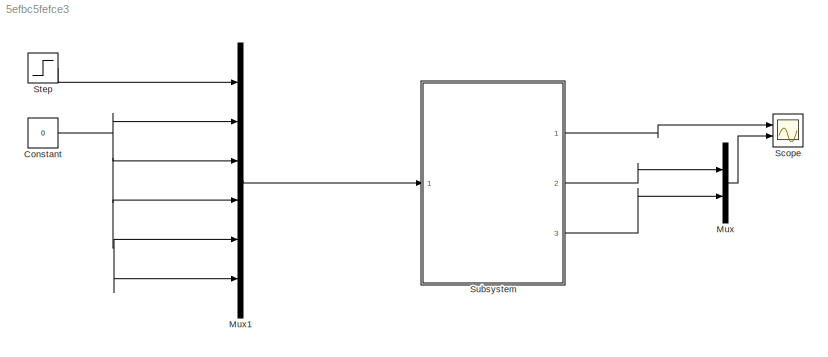
MODEL slx_5efbc5fefce3
KIND model
CONFIG AbsTol = auto
CONFIG EnableMultiTasking = off
CONFIG FixedStep = auto
CONFIG MaxStep = auto
CONFIG MinStep = auto
CONFIG RelTol = 1e-3
CONFIG SampleTimeConstraint = Unconstrained
CONFIG Solver = VariableStepAuto
CONFIG SolverName = VariableStepAuto
CONFIG StartTime = 0.0
CONFIG StopTime = 100
BLOCK [Constant] Constant
  Value = 0
BLOCK [Mux] Mux
  DisplayOption = bar
  Inputs = 2
  Ports = [2, 1]
BLOCK [Mux] Mux1
  DisplayOption = bar
  Inputs = 6
  Ports = [6, 1]
BLOCK [Scope] Scope
  NumInputPorts = 2
  Ports = [2]
  ScopeSpecificationString = Simulink.scopes.TimeScopeBlockCfg('CurrentConfiguration', extmgr.ConfigurationSet(extmgr.Configuration('Core','General UI',true),extmgr.Configuration('Core','Source UI',true),extmgr.Configuration('Sources','WiredSimulink',true),extmgr.Configuration('Visuals','Time Domain',true,'SerializedDisplays',{struct('MinYLimReal','-0.13766','MaxYLimReal','1.18265','YLabelReal','','MinYLimMag','0.00000','MaxY...<+1359ch>
BLOCK [Step] Step
  SampleTime = 0
  Time = 5
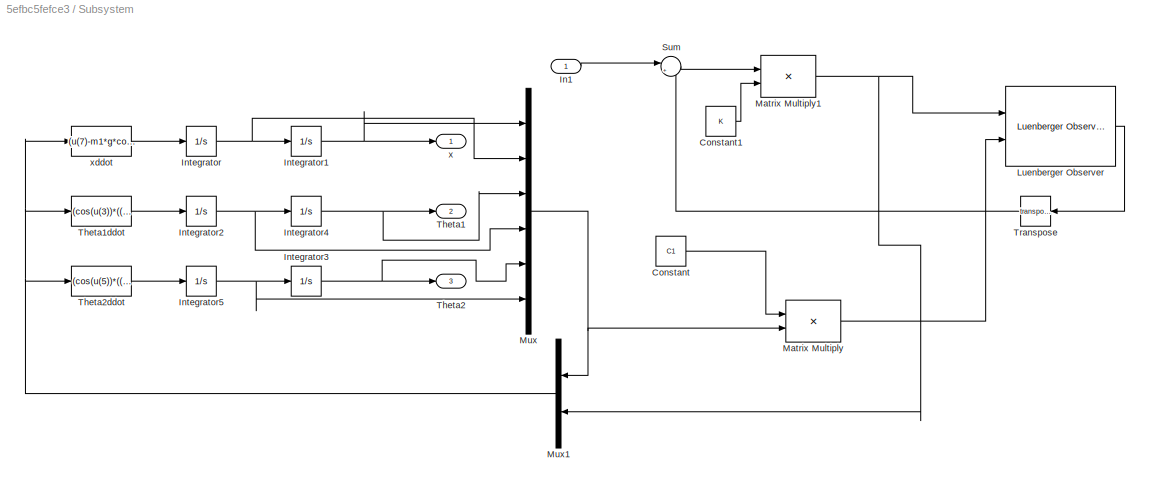
BLOCK [SubSystem] Subsystem
  Ports = [1, 3]
  RequestExecContextInheritance = off
  Variant = off
BLOCK [Constant] Subsystem/Constant
  Value = C1
BLOCK [Constant] Subsystem/Constant1
  Value = K
BLOCK [Inport] Subsystem/In1
  IconDisplay = Port number
BLOCK [Integrator] Subsystem/Integrator
  Ports = [1, 1]
BLOCK [Integrator] Subsystem/Integrator1
  Ports = [1, 1]
BLOCK [Integrator] Subsystem/Integrator2
  Ports = [1, 1]
BLOCK [Integrator] Subsystem/Integrator3
  Ports = [1, 1]
BLOCK [Integrator] Subsystem/Integrator4
  Ports = [1, 1]
BLOCK [Integrator] Subsystem/Integrator5
  Ports = [1, 1]
BLOCK [Reference] Subsystem/Luenberger Observer  REF=peLuenbergerObserver/Luenberger Observer
  Ports = [2, 1]
  SourceBlock = peLuenbergerObserver/Luenberger Observer
  SourceType = Luenberger Observer
BLOCK [Product] Subsystem/Matrix Multiply
  InputSameDT = off
  Multiplication = Matrix(*)
  OutDataTypeStr = Inherit: Inherit via internal rule
  Ports = [2, 1]
  RndMeth = Floor
  SaturateOnIntegerOverflow = off
BLOCK [Product] Subsystem/Matrix Multiply1
  InputSameDT = off
  Multiplication = Matrix(*)
  OutDataTypeStr = Inherit: Inherit via internal rule
  Ports = [2, 1]
  RndMeth = Floor
  SaturateOnIntegerOverflow = off
BLOCK [Mux] Subsystem/Mux
  DisplayOption = bar
  Inputs = 6
  Ports = [6, 1]
BLOCK [Mux] Subsystem/Mux1
  DisplayOption = bar
  Inputs = 2
  Ports = [2, 1]
BLOCK [Sum] Subsystem/Sum
  IconShape = round
  InputSameDT = off
  Inputs = |+-
  OutDataTypeStr = Inherit: Inherit via internal rule
  Ports = [2, 1]
  SaturateOnIntegerOverflow = off
BLOCK [Outport] Subsystem/Theta1
  IconDisplay = Port number
  Port = 2
BLOCK [Fcn] Subsystem/Theta1ddot
  Expr = (cos(u(3))*((u(7)-m1*g*cos(u(3))*sin(u(3))-m2*g*cos(u(5))*sin(u(5))-m1*l1*sin(u(3))*u(4)^2-m2*l2*sin(u(5))*u(6)^2)/(M+m1*sin(u(3))^2+m2*sin(u(5))^2))-g*sin(u(3)))/l1
BLOCK [Outport] Subsystem/Theta2
  IconDisplay = Port number
  Port = 3
BLOCK [Fcn] Subsystem/Theta2ddot 
  Expr = (cos(u(5))*((u(7)-m1*g*cos(u(3))*sin(u(3))-m2*g*cos(u(5))*sin(u(5))-m1*l1*sin(u(3))*u(4)^2-m2*l2*sin(u(5))*u(6)^2)/(M+m1*sin(u(3))^2+m2*sin(u(5))^2))-g*sin(u(5)))/l2
BLOCK [Math] Subsystem/Transpose
  Operator = transpose
  Ports = [1, 1]
BLOCK [Outport] Subsystem/x 
  IconDisplay = Port number
BLOCK [Fcn] Subsystem/xddot 
  Expr = (u(7)-m1*g*cos(u(3))*sin(u(3))-m2*g*cos(u(5))*sin(u(5))-m1*l1*sin(u(3))*u(4)^2-m2*l2*sin(u(5))*u(6)^2)/(M+m1*sin(u(3))^2+m2*sin(u(5))^2)
NET Constant:1 -> Mux1:2, Mux1:3, Mux1:4, Mux1:5, Mux1:6
LINE Mux1:1 -> Subsystem:1
LINE Mux:1 -> Scope:2
LINE Step:1 -> Mux1:1
LINE Subsystem/Constant1:1 -> Subsystem/Matrix Multiply1:2
LINE Subsystem/Constant:1 -> Subsystem/Matrix Multiply:1
LINE Subsystem/In1:1 -> Subsystem/Sum:1
NET Subsystem/Integrator1:1 -> Subsystem/Mux:1, Subsystem/x :1
NET Subsystem/Integrator2:1 -> Subsystem/Integrator4:1, Subsystem/Mux:4
NET Subsystem/Integrator3:1 -> Subsystem/Mux:5, Subsystem/Theta2:1
NET Subsystem/Integrator4:1 -> Subsystem/Mux:3, Subsystem/Theta1:1
NET Subsystem/Integrator5:1 -> Subsystem/Integrator3:1, Subsystem/Mux:6
NET Subsystem/Integrator:1 -> Subsystem/Integrator1:1, Subsystem/Mux:2
LINE Subsystem/Luenberger Observer:1 -> Subsystem/Transpose:1
NET Subsystem/Matrix Multiply1:1 -> Subsystem/Luenberger Observer:1, Subsystem/Mux1:2
LINE Subsystem/Matrix Multiply:1 -> Subsystem/Luenberger Observer:2
NET Subsystem/Mux1:1 -> Subsystem/Theta1ddot:1, Subsystem/Theta2ddot :1, Subsystem/xddot :1
NET Subsystem/Mux:1 -> Subsystem/Matrix Multiply:2, Subsystem/Mux1:1
LINE Subsystem/Sum:1 -> Subsystem/Matrix Multiply1:1
LINE Subsystem/Theta1ddot:1 -> Subsystem/Integrator2:1
LINE Subsystem/Theta2ddot :1 -> Subsystem/Integrator5:1
LINE Subsystem/Transpose:1 -> Subsystem/Sum:2
LINE Subsystem/xddot :1 -> Subsystem/Integrator:1
LINE Subsystem:1 -> Scope:1
LINE Subsystem:2 -> Mux:1
LINE Subsystem:3 -> Mux:2
note: NET lines group one-source signal fan-out (src -> all destinations, sorted); 1:1 wires keep LINE
